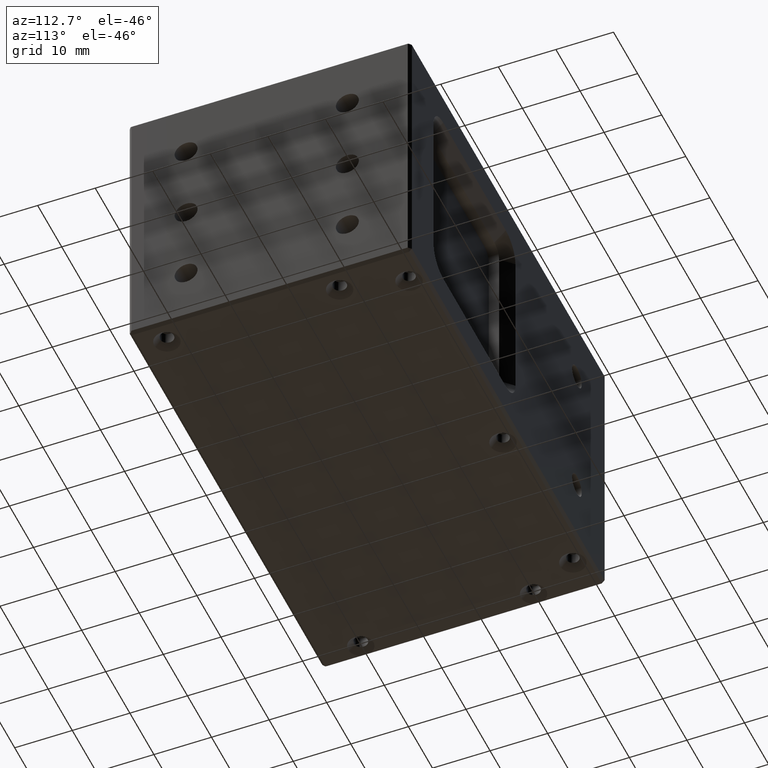
[diagram: clean part render]
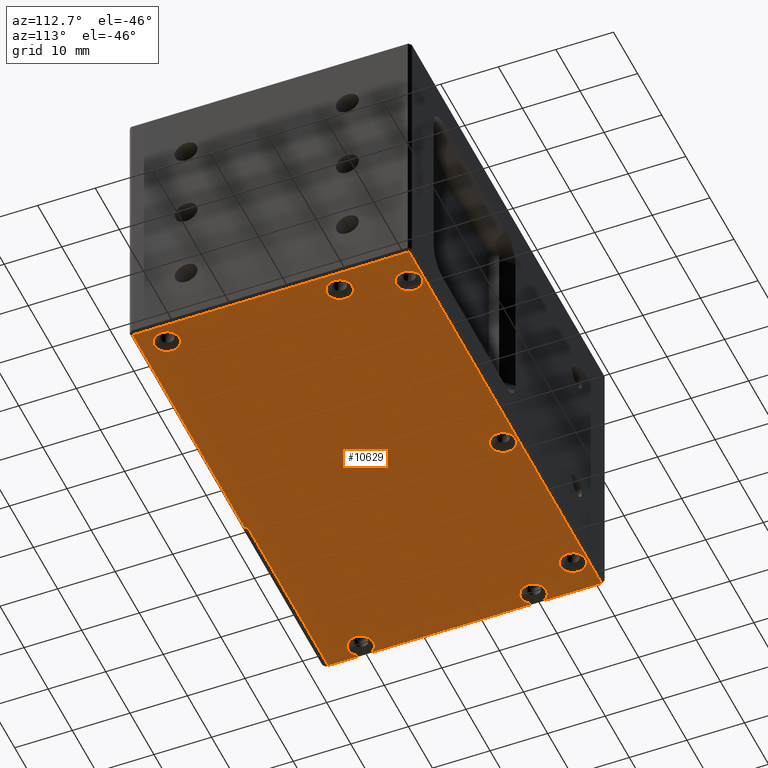
[diagram: same view with one face highlighted and labeled with its STEP entity id]
A machine part, auxiliary view. The second image highlights one B-rep face of the part: STEP entity #10629.
In plain terms, the highlighted planar face has unit normal (0, 0, 1).
Its self-contained STEP definition (entity closure, byte-faithful):
#420 = ORIENTED_EDGE ( 'NONE', *, *, #26350, .F. ) ;
#447 = DIRECTION ( 'NONE',  ( 0.0000000000000000000, 0.0000000000000000000, -1.000000000000000000 ) ) ;
#547 = LINE ( 'NONE', #6984, #11787 ) ;
#1035 = VECTOR ( 'NONE', #19820, 1000.000000000000000 ) ;
#1349 = AXIS2_PLACEMENT_3D ( 'NONE', #6133, #21882, #8376 ) ;
#1426 = VERTEX_POINT ( 'NONE', #1929 ) ;
#1603 = CARTESIAN_POINT ( 'NONE',  ( -40.24090188147999900, 37.74734783202000400, -40.00000000000000700 ) ) ;
#1698 = LINE ( 'NONE', #25957, #24950 ) ;
#1813 = VERTEX_POINT ( 'NONE', #14297 ) ;
#1840 = CARTESIAN_POINT ( 'NONE',  ( -4.040901881479996400, 40.24734783201995500, -40.00000000000000000 ) ) ;
#1929 = CARTESIAN_POINT ( 'NONE',  ( 32.15909811851999900, 37.74734783202000400, -40.00000000000000000 ) ) ;
#2066 = AXIS2_PLACEMENT_3D ( 'NONE', #6670, #22438, #8926 ) ;
#2220 = CIRCLE ( 'NONE', #24521, 2.199999999996005600 ) ;
#2434 = DIRECTION ( 'NONE',  ( 0.0000000000000000000, 0.0000000000000000000, 1.000000000000000000 ) ) ;
#2748 = VERTEX_POINT ( 'NONE', #6953 ) ;
#2945 = CARTESIAN_POINT ( 'NONE',  ( -39.84090188147995800, 29.24734783202000400, -40.00000000000005000 ) ) ;
#3274 = AXIS2_PLACEMENT_3D ( 'NONE', #15925, #2434, #18195 ) ;
#3442 = EDGE_LOOP ( 'NONE', ( #22997, #24271 ) ) ;
#3495 = DIRECTION ( 'NONE',  ( -0.0000000000000000000, -1.000000000000000000, -0.0000000000000000000 ) ) ;
#3612 = EDGE_LOOP ( 'NONE', ( #8683, #24195 ) ) ;
#4117 = ORIENTED_EDGE ( 'NONE', *, *, #19413, .F. ) ;
#4276 = ORIENTED_EDGE ( 'NONE', *, *, #20360, .F. ) ;
#4452 = CARTESIAN_POINT ( 'NONE',  ( 27.75909811852000100, 37.74734783202000400, -40.00000000000000000 ) ) ;
#4502 = DIRECTION ( 'NONE',  ( -0.0000000000000000000, -1.000000000000000000, -0.0000000000000000000 ) ) ;
#4551 = CARTESIAN_POINT ( 'NONE',  ( -10.54090188148196300, -7.252652167982173400, -40.00000000000454700 ) ) ;
#4650 = VERTEX_POINT ( 'NONE', #4452 ) ;
#4946 = VERTEX_POINT ( 'NONE', #17540 ) ;
#5246 = VERTEX_POINT ( 'NONE', #2945 ) ;
#5507 = DIRECTION ( 'NONE',  ( 0.0000000000000000000, 0.0000000000000000000, -1.000000000000000000 ) ) ;
#5822 = FACE_BOUND ( 'NONE', #13672, .T. ) ;
#5871 = DIRECTION ( 'NONE',  ( 0.0000000000000000000, 0.0000000000000000000, -1.000000000000000000 ) ) ;
#6118 = DIRECTION ( 'NONE',  ( 0.0000000000000000000, 0.0000000000000000000, -1.000000000000000000 ) ) ;
#6133 = CARTESIAN_POINT ( 'NONE',  ( 29.95909811852000000, 37.74734783202000400, -40.00000000000000000 ) ) ;
#6162 = CIRCLE ( 'NONE', #11912, 2.200000000000007300 ) ;
#6186 = EDGE_CURVE ( 'NONE', #7927, #5246, #9876, .T. ) ;
#6230 = VERTEX_POINT ( 'NONE', #8661 ) ;
#6272 = EDGE_CURVE ( 'NONE', #7911, #6230, #25351, .T. ) ;
#6670 = CARTESIAN_POINT ( 'NONE',  ( -42.04090188148000400, 29.24734783202000400, -40.00000000000005000 ) ) ;
#6786 = LINE ( 'NONE', #10058, #24056 ) ;
#6831 = EDGE_CURVE ( 'NONE', #5246, #22786, #27107, .T. ) ;
#6953 = CARTESIAN_POINT ( 'NONE',  ( -11.24090188148000600, 37.74734783202000400, -40.00000000000000000 ) ) ;
#6984 = CARTESIAN_POINT ( 'NONE',  ( -44.04090188148000400, 16.24734783201899900, -40.00000000000000000 ) ) ;
#7114 = AXIS2_PLACEMENT_3D ( 'NONE', #24165, #10668, #26410 ) ;
#7338 = EDGE_CURVE ( 'NONE', #2748, #4946, #2220, .T. ) ;
#7492 = ORIENTED_EDGE ( 'NONE', *, *, #26631, .F. ) ;
#7911 = VERTEX_POINT ( 'NONE', #9482 ) ;
#7927 = VERTEX_POINT ( 'NONE', #22968 ) ;
#8178 = CARTESIAN_POINT ( 'NONE',  ( -44.04090188147998200, 28.33083269302874600, -40.00000000000002100 ) ) ;
#8376 = DIRECTION ( 'NONE',  ( -1.000000000000000000, 0.0000000000000000000, 0.0000000000000000000 ) ) ;
#8454 = CARTESIAN_POINT ( 'NONE',  ( -35.84090188147998600, 37.74734783202000400, -40.00000000000000700 ) ) ;
#8661 = CARTESIAN_POINT ( 'NONE',  ( -44.04090188147998200, -1.669167306973658300, -40.00000000000002100 ) ) ;
#8683 = ORIENTED_EDGE ( 'NONE', *, *, #21306, .F. ) ;
#8748 = ORIENTED_EDGE ( 'NONE', *, *, #28613, .T. ) ;
#8808 = ORIENTED_EDGE ( 'NONE', *, *, #11065, .T. ) ;
#8926 = DIRECTION ( 'NONE',  ( -1.000000000000000000, 0.0000000000000000000, 0.0000000000000000000 ) ) ;
#8955 = DIRECTION ( 'NONE',  ( 0.0000000000000000000, 0.0000000000000000000, -1.000000000000000000 ) ) ;
#9200 = EDGE_CURVE ( 'NONE', #22786, #15417, #16433, .T. ) ;
#9249 = CARTESIAN_POINT ( 'NONE',  ( -44.04090188148002500, -7.252652167981964700, -40.00000000000172700 ) ) ;
#9267 = CARTESIAN_POINT ( 'NONE',  ( 32.45909811852000400, -3.252652167981999700, -40.00000000000003600 ) ) ;
#9418 = CARTESIAN_POINT ( 'NONE',  ( -42.04090188148000400, -0.7526521679824000900, -40.00000000000005000 ) ) ;
#9482 = CARTESIAN_POINT ( 'NONE',  ( -39.84090188147995800, -0.7526521679823998700, -40.00000000000005000 ) ) ;
#9656 = EDGE_CURVE ( 'NONE', #17550, #27444, #20574, .T. ) ;
#9876 = CIRCLE ( 'NONE', #10871, 2.200000000000049000 ) ;
#10058 = CARTESIAN_POINT ( 'NONE',  ( 12.83409811852000200, -7.752652167981996600, -40.00000000000000700 ) ) ;
#10323 = AXIS2_PLACEMENT_3D ( 'NONE', #24644, #11129, #26918 ) ;
#10333 = DIRECTION ( 'NONE',  ( 0.0000000000000000000, 0.0000000000000000000, -1.000000000000000000 ) ) ;
#10412 = EDGE_CURVE ( 'NONE', #25588, #23948, #6162, .T. ) ;
#10597 = DIRECTION ( 'NONE',  ( 0.0000000000000000000, 0.0000000000000000000, -1.000000000000000000 ) ) ;
#10629 = ADVANCED_FACE ( 'NONE', ( #12514, #29113, #5822, #23099, #17121, #11114 ), #15815, .F. ) ;
#10650 = LINE ( 'NONE', #22525, #27918 ) ;
#10666 = ORIENTED_EDGE ( 'NONE', *, *, #19761, .F. ) ;
#10668 = DIRECTION ( 'NONE',  ( 0.0000000000000000000, 0.0000000000000000000, -1.000000000000000000 ) ) ;
#10871 = AXIS2_PLACEMENT_3D ( 'NONE', #19588, #6118, #21869 ) ;
#11065 = EDGE_CURVE ( 'NONE', #14321, #19088, #11396, .T. ) ;
#11114 = FACE_OUTER_BOUND ( 'NONE', #18124, .T. ) ;
#11129 = DIRECTION ( 'NONE',  ( 0.0000000000000000000, 0.0000000000000000000, -1.000000000000000000 ) ) ;
#11328 = CARTESIAN_POINT ( 'NONE',  ( 35.95909811852001100, -7.752652167981985100, -40.00000000000001400 ) ) ;
#11396 = LINE ( 'NONE', #20055, #22682 ) ;
#11530 = DIRECTION ( 'NONE',  ( -1.000000000000000000, 0.0000000000000000000, 0.0000000000000000000 ) ) ;
#11674 = DIRECTION ( 'NONE',  ( -1.000000000000000000, 0.0000000000000000000, 0.0000000000000000000 ) ) ;
#11782 = CARTESIAN_POINT ( 'NONE',  ( -9.040901881483998500, 37.74734783202000400, -40.00000000000000000 ) ) ;
#11787 = VECTOR ( 'NONE', #18240, 1000.000000000000000 ) ;
#11837 = ORIENTED_EDGE ( 'NONE', *, *, #28258, .F. ) ;
#11912 = AXIS2_PLACEMENT_3D ( 'NONE', #24094, #10597, #26333 ) ;
#12325 = VERTEX_POINT ( 'NONE', #20855 ) ;
#12514 = FACE_BOUND ( 'NONE', #27768, .T. ) ;
#12519 = CIRCLE ( 'NONE', #1349, 2.199999999999997100 ) ;
#13672 = EDGE_LOOP ( 'NONE', ( #4117, #25547 ) ) ;
#13730 = VERTEX_POINT ( 'NONE', #24588 ) ;
#13908 = CARTESIAN_POINT ( 'NONE',  ( 32.45909811852000400, 26.74734783202000400, -40.00000000000003600 ) ) ;
#14035 = DIRECTION ( 'NONE',  ( -1.000000000000000000, 0.0000000000000000000, 0.0000000000000000000 ) ) ;
#14297 = CARTESIAN_POINT ( 'NONE',  ( 35.95909811851935700, 40.24734783201996200, -40.00000000000022700 ) ) ;
#14321 = VERTEX_POINT ( 'NONE', #4551 ) ;
#14468 = EDGE_CURVE ( 'NONE', #18043, #28749, #6786, .T. ) ;
#14814 = CARTESIAN_POINT ( 'NONE',  ( -44.04090188148000400, 16.24734783201899900, -40.00000000000000000 ) ) ;
#15394 = ORIENTED_EDGE ( 'NONE', *, *, #25788, .F. ) ;
#15417 = VERTEX_POINT ( 'NONE', #18467 ) ;
#15476 = CARTESIAN_POINT ( 'NONE',  ( 30.25909811851995800, -3.252652167981999700, -40.00000000000003600 ) ) ;
#15634 = DIRECTION ( 'NONE',  ( -1.000000000000000000, 0.0000000000000000000, 0.0000000000000000000 ) ) ;
#15730 = VECTOR ( 'NONE', #3495, 1000.000000000000000 ) ;
#15815 = PLANE ( 'NONE',  #3274 ) ;
#15925 = CARTESIAN_POINT ( 'NONE',  ( -45.64090188147999800, -8.712652167982001900, -40.00000000000000000 ) ) ;
#16184 = DIRECTION ( 'NONE',  ( -1.000000000000000000, 0.0000000000000000000, 0.0000000000000000000 ) ) ;
#16224 = ORIENTED_EDGE ( 'NONE', *, *, #6272, .F. ) ;
#16261 = AXIS2_PLACEMENT_3D ( 'NONE', #19019, #5507, #21258 ) ;
#16433 = LINE ( 'NONE', #14814, #15730 ) ;
#16866 = ORIENTED_EDGE ( 'NONE', *, *, #6186, .F. ) ;
#17121 = FACE_BOUND ( 'NONE', #20916, .T. ) ;
#17143 = CIRCLE ( 'NONE', #23883, 2.200000000000049000 ) ;
#17180 = LINE ( 'NONE', #27782, #22466 ) ;
#17540 = CARTESIAN_POINT ( 'NONE',  ( -6.840901881487991600, 37.74734783202000400, -40.00000000000000000 ) ) ;
#17550 = VERTEX_POINT ( 'NONE', #25170 ) ;
#18043 = VERTEX_POINT ( 'NONE', #11328 ) ;
#18124 = EDGE_LOOP ( 'NONE', ( #420, #16224, #10666, #21270, #24717, #16866, #15394, #11837, #28382, #20845, #8748, #8808 ) ) ;
#18195 = DIRECTION ( 'NONE',  ( 1.000000000000000000, 0.0000000000000000000, 0.0000000000000000000 ) ) ;
#18240 = DIRECTION ( 'NONE',  ( -0.0000000000000000000, -1.000000000000000000, -0.0000000000000000000 ) ) ;
#18306 = EDGE_CURVE ( 'NONE', #12325, #25639, #20853, .T. ) ;
#18312 = CARTESIAN_POINT ( 'NONE',  ( 34.65909811852005600, 26.74734783202000400, -40.00000000000003600 ) ) ;
#18467 = CARTESIAN_POINT ( 'NONE',  ( -44.04090188148001100, 0.1638629710088006800, -40.00000000000002100 ) ) ;
#18950 = CIRCLE ( 'NONE', #20481, 2.200000000000007300 ) ;
#19019 = CARTESIAN_POINT ( 'NONE',  ( 32.45909811852000400, 26.74734783202000400, -40.00000000000003600 ) ) ;
#19053 = EDGE_CURVE ( 'NONE', #4650, #1426, #28862, .T. ) ;
#19088 = VERTEX_POINT ( 'NONE', #9249 ) ;
#19362 = CARTESIAN_POINT ( 'NONE',  ( -38.04090188147999600, 37.74734783202000400, -40.00000000000000700 ) ) ;
#19374 = EDGE_CURVE ( 'NONE', #1813, #18043, #1698, .T. ) ;
#19413 = EDGE_CURVE ( 'NONE', #23948, #25588, #18950, .T. ) ;
#19588 = CARTESIAN_POINT ( 'NONE',  ( -42.04090188148000400, 29.24734783202000400, -40.00000000000005000 ) ) ;
#19761 = EDGE_CURVE ( 'NONE', #15417, #7911, #17143, .T. ) ;
#19820 = DIRECTION ( 'NONE',  ( -1.000000000000000000, -0.0000000000000000000, -0.0000000000000000000 ) ) ;
#20040 = EDGE_CURVE ( 'NONE', #4946, #2748, #24897, .T. ) ;
#20055 = CARTESIAN_POINT ( 'NONE',  ( -27.54090188148199700, -7.252652167982002000, -40.00000000000519400 ) ) ;
#20360 = EDGE_CURVE ( 'NONE', #27444, #17550, #21303, .T. ) ;
#20481 = AXIS2_PLACEMENT_3D ( 'NONE', #19362, #5871, #21631 ) ;
#20574 = CIRCLE ( 'NONE', #16261, 2.200000000000049000 ) ;
#20845 = ORIENTED_EDGE ( 'NONE', *, *, #14468, .T. ) ;
#20853 = CIRCLE ( 'NONE', #26473, 2.200000000000049000 ) ;
#20855 = CARTESIAN_POINT ( 'NONE',  ( 34.65909811852005600, -3.252652167981999700, -40.00000000000003600 ) ) ;
#20916 = EDGE_LOOP ( 'NONE', ( #25084, #7492 ) ) ;
#21258 = DIRECTION ( 'NONE',  ( -1.000000000000000000, 0.0000000000000000000, 0.0000000000000000000 ) ) ;
#21270 = ORIENTED_EDGE ( 'NONE', *, *, #9200, .F. ) ;
#21303 = CIRCLE ( 'NONE', #22040, 2.200000000000049000 ) ;
#21306 = EDGE_CURVE ( 'NONE', #25639, #12325, #26007, .T. ) ;
#21533 = DIRECTION ( 'NONE',  ( -0.0000000000000000000, -1.000000000000000000, -0.0000000000000000000 ) ) ;
#21631 = DIRECTION ( 'NONE',  ( -1.000000000000000000, 0.0000000000000000000, 0.0000000000000000000 ) ) ;
#21869 = DIRECTION ( 'NONE',  ( -1.000000000000000000, 0.0000000000000000000, 0.0000000000000000000 ) ) ;
#21882 = DIRECTION ( 'NONE',  ( 0.0000000000000000000, 0.0000000000000000000, -1.000000000000000000 ) ) ;
#22040 = AXIS2_PLACEMENT_3D ( 'NONE', #13908, #447, #16184 ) ;
#22438 = DIRECTION ( 'NONE',  ( 0.0000000000000000000, 0.0000000000000000000, -1.000000000000000000 ) ) ;
#22463 = CARTESIAN_POINT ( 'NONE',  ( 29.95909811852000000, 37.74734783202000400, -40.00000000000000000 ) ) ;
#22466 = VECTOR ( 'NONE', #25511, 1000.000000000000000 ) ;
#22525 = CARTESIAN_POINT ( 'NONE',  ( -44.04090188148000400, 16.24734783201899900, -40.00000000000000000 ) ) ;
#22682 = VECTOR ( 'NONE', #15634, 1000.000000000000000 ) ;
#22786 = VERTEX_POINT ( 'NONE', #8178 ) ;
#22968 = CARTESIAN_POINT ( 'NONE',  ( -44.04090188148009600, 30.16386297101079000, -39.99999999999992200 ) ) ;
#22997 = ORIENTED_EDGE ( 'NONE', *, *, #7338, .F. ) ;
#23099 = FACE_BOUND ( 'NONE', #3442, .T. ) ;
#23815 = CARTESIAN_POINT ( 'NONE',  ( 32.45909811852000400, -3.252652167981999700, -40.00000000000003600 ) ) ;
#23883 = AXIS2_PLACEMENT_3D ( 'NONE', #9418, #25182, #11674 ) ;
#23921 = CARTESIAN_POINT ( 'NONE',  ( -10.54090188147999800, -7.752652167981997500, -40.00000000000173400 ) ) ;
#23948 = VERTEX_POINT ( 'NONE', #1603 ) ;
#24056 = VECTOR ( 'NONE', #25784, 1000.000000000000000 ) ;
#24094 = CARTESIAN_POINT ( 'NONE',  ( -38.04090188147999600, 37.74734783202000400, -40.00000000000000700 ) ) ;
#24112 = ORIENTED_EDGE ( 'NONE', *, *, #9656, .F. ) ;
#24165 = CARTESIAN_POINT ( 'NONE',  ( -9.040901881483998500, 37.74734783202000400, -40.00000000000000000 ) ) ;
#24195 = ORIENTED_EDGE ( 'NONE', *, *, #18306, .F. ) ;
#24271 = ORIENTED_EDGE ( 'NONE', *, *, #20040, .F. ) ;
#24521 = AXIS2_PLACEMENT_3D ( 'NONE', #11782, #27543, #14035 ) ;
#24588 = CARTESIAN_POINT ( 'NONE',  ( -44.04090188148001100, 40.24734783201427000, -40.00000000000000000 ) ) ;
#24644 = CARTESIAN_POINT ( 'NONE',  ( -42.04090188148000400, -0.7526521679824000900, -40.00000000000005000 ) ) ;
#24717 = ORIENTED_EDGE ( 'NONE', *, *, #6831, .F. ) ;
#24742 = DIRECTION ( 'NONE',  ( -1.000000000000000000, 0.0000000000000000000, 0.0000000000000000000 ) ) ;
#24897 = CIRCLE ( 'NONE', #7114, 2.199999999996005600 ) ;
#24950 = VECTOR ( 'NONE', #21533, 1000.000000000000000 ) ;
#24992 = LINE ( 'NONE', #1840, #1035 ) ;
#25039 = DIRECTION ( 'NONE',  ( 0.0000000000000000000, 0.0000000000000000000, -1.000000000000000000 ) ) ;
#25084 = ORIENTED_EDGE ( 'NONE', *, *, #19053, .F. ) ;
#25170 = CARTESIAN_POINT ( 'NONE',  ( 30.25909811851995800, 26.74734783202000400, -40.00000000000003600 ) ) ;
#25182 = DIRECTION ( 'NONE',  ( 0.0000000000000000000, 0.0000000000000000000, -1.000000000000000000 ) ) ;
#25351 = CIRCLE ( 'NONE', #10323, 2.200000000000049000 ) ;
#25511 = DIRECTION ( 'NONE',  ( 0.0000000000000000000, 1.000000000000000000, 0.0000000000000000000 ) ) ;
#25547 = ORIENTED_EDGE ( 'NONE', *, *, #10412, .F. ) ;
#25588 = VERTEX_POINT ( 'NONE', #8454 ) ;
#25639 = VERTEX_POINT ( 'NONE', #15476 ) ;
#25784 = DIRECTION ( 'NONE',  ( -1.000000000000000000, -0.0000000000000000000, -0.0000000000000000000 ) ) ;
#25788 = EDGE_CURVE ( 'NONE', #13730, #7927, #547, .T. ) ;
#25957 = CARTESIAN_POINT ( 'NONE',  ( 35.95909811851999600, 16.12234783201900600, -40.00000000000000700 ) ) ;
#26007 = CIRCLE ( 'NONE', #28682, 2.200000000000049000 ) ;
#26059 = DIRECTION ( 'NONE',  ( -1.000000000000000000, 0.0000000000000000000, 0.0000000000000000000 ) ) ;
#26333 = DIRECTION ( 'NONE',  ( -1.000000000000000000, 0.0000000000000000000, 0.0000000000000000000 ) ) ;
#26350 = EDGE_CURVE ( 'NONE', #6230, #19088, #10650, .T. ) ;
#26410 = DIRECTION ( 'NONE',  ( -1.000000000000000000, 0.0000000000000000000, 0.0000000000000000000 ) ) ;
#26473 = AXIS2_PLACEMENT_3D ( 'NONE', #23815, #10333, #26059 ) ;
#26631 = EDGE_CURVE ( 'NONE', #1426, #4650, #12519, .T. ) ;
#26918 = DIRECTION ( 'NONE',  ( -1.000000000000000000, 0.0000000000000000000, 0.0000000000000000000 ) ) ;
#27107 = CIRCLE ( 'NONE', #2066, 2.200000000000049000 ) ;
#27444 = VERTEX_POINT ( 'NONE', #18312 ) ;
#27543 = DIRECTION ( 'NONE',  ( 0.0000000000000000000, 0.0000000000000000000, -1.000000000000000000 ) ) ;
#27768 = EDGE_LOOP ( 'NONE', ( #24112, #4276 ) ) ;
#27782 = CARTESIAN_POINT ( 'NONE',  ( -10.54090188148000000, -7.752652167982502000, -40.00000000000519400 ) ) ;
#27918 = VECTOR ( 'NONE', #4502, 1000.000000000000000 ) ;
#28200 = AXIS2_PLACEMENT_3D ( 'NONE', #22463, #8955, #24742 ) ;
#28258 = EDGE_CURVE ( 'NONE', #1813, #13730, #24992, .T. ) ;
#28382 = ORIENTED_EDGE ( 'NONE', *, *, #19374, .T. ) ;
#28613 = EDGE_CURVE ( 'NONE', #28749, #14321, #17180, .T. ) ;
#28682 = AXIS2_PLACEMENT_3D ( 'NONE', #9267, #25039, #11530 ) ;
#28749 = VERTEX_POINT ( 'NONE', #23921 ) ;
#28862 = CIRCLE ( 'NONE', #28200, 2.199999999999997100 ) ;
#29113 = FACE_BOUND ( 'NONE', #3612, .T. ) ;